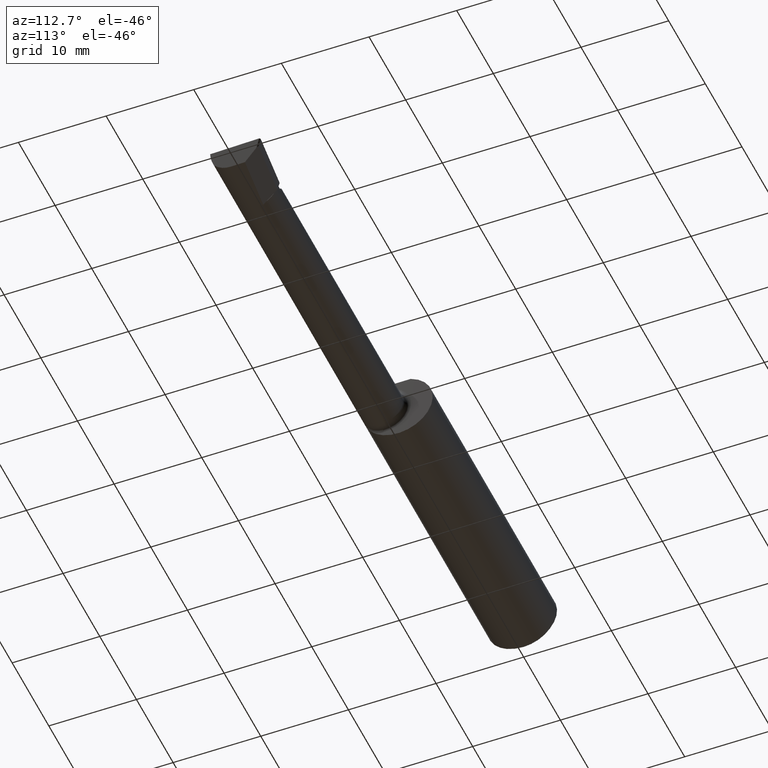
[diagram: clean part render]
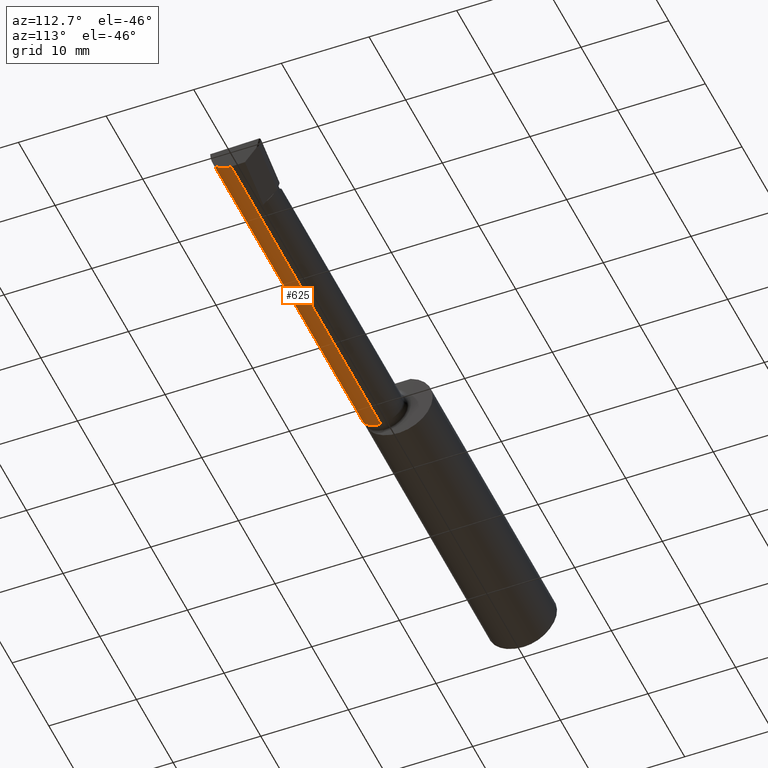
[diagram: same view with one face highlighted and labeled with its STEP entity id]
A machine part, auxiliary view. The second image highlights one B-rep face of the part: STEP entity #625.
In plain terms, the highlighted cylindrical surface (edge-blend (fillet) strip) has radius 2.5375 mm, axis along (-1, -0, -0).
Its self-contained STEP definition (entity closure, byte-faithful):
#4 = CYLINDRICAL_SURFACE ( 'NONE', #440, 0.09989999999999998881 ) ;
#8 = EDGE_CURVE ( 'NONE', #596, #362, #585, .T. ) ;
#13 = VECTOR ( 'NONE', #414, 39.37007874015748143 ) ;
#23 = VERTEX_POINT ( 'NONE', #790 ) ;
#35 = EDGE_CURVE ( 'NONE', #159, #23, #328, .T. ) ;
#47 = EDGE_CURVE ( 'NONE', #296, #159, #174, .T. ) ;
#65 = FACE_OUTER_BOUND ( 'NONE', #738, .T. ) ;
#159 = VERTEX_POINT ( 'NONE', #573 ) ;
#174 = LINE ( 'NONE', #613, #726 ) ;
#188 = CARTESIAN_POINT ( 'NONE',  ( 2.986434241799654554, -0.1419939393939393391, -0.06484544066771595616 ) ) ;
#192 = EDGE_CURVE ( 'NONE', #596, #23, #378, .T. ) ;
#202 = DIRECTION ( 'NONE',  ( 0.000000000000000000, 0.000000000000000000, 1.000000000000000000 ) ) ;
#205 = DIRECTION ( 'NONE',  ( -1.000000000000000000, -0.000000000000000000, -0.000000000000000000 ) ) ;
#257 = ORIENTED_EDGE ( 'NONE', *, *, #325, .F. ) ;
#260 = DIRECTION ( 'NONE',  ( -1.000000000000000000, -0.000000000000000000, -0.000000000000000000 ) ) ;
#273 = CARTESIAN_POINT ( 'NONE',  ( 2.986434241799654554, -0.1419939393939393391, -0.06484544066771595616 ) ) ;
#280 = ORIENTED_EDGE ( 'NONE', *, *, #35, .F. ) ;
#296 = VERTEX_POINT ( 'NONE', #395 ) ;
#302 = DIRECTION ( 'NONE',  ( 0.000000000000000000, 0.000000000000000000, 1.000000000000000000 ) ) ;
#304 = AXIS2_PLACEMENT_3D ( 'NONE', #478, #608, #302 ) ;
#325 = EDGE_CURVE ( 'NONE', #362, #296, #600, .T. ) ;
#328 = CIRCLE ( 'NONE', #304, 0.09989999999999990554 ) ;
#362 = VERTEX_POINT ( 'NONE', #473 ) ;
#378 = LINE ( 'NONE', #570, #545 ) ;
#395 = CARTESIAN_POINT ( 'NONE',  ( 2.729999999999999982, -0.06599999999999998923, -0.09990000000000000269 ) ) ;
#397 = ORIENTED_EDGE ( 'NONE', *, *, #47, .F. ) ;
#414 = DIRECTION ( 'NONE',  ( -1.000000000000000000, 5.691349986800549142E-18, -0.000000000000000000 ) ) ;
#440 = AXIS2_PLACEMENT_3D ( 'NONE', #509, #205, #202 ) ;
#471 = ORIENTED_EDGE ( 'NONE', *, *, #8, .F. ) ;
#473 = CARTESIAN_POINT ( 'NONE',  ( 2.984118579027821738, -0.06599999999999998923, -0.09990000000000000269 ) ) ;
#478 = CARTESIAN_POINT ( 'NONE',  ( 1.375000000000000222, -0.06599999999999998923, 0.000000000000000000 ) ) ;
#509 = CARTESIAN_POINT ( 'NONE',  ( 0.000000000000000000, -0.06599999999999998923, 0.000000000000000000 ) ) ;
#545 = VECTOR ( 'NONE', #260, 39.37007874015748143 ) ;
#546 = CARTESIAN_POINT ( 'NONE',  ( 2.984118579027821738, -0.06599999999999998923, -0.09990000000000000269 ) ) ;
#570 = CARTESIAN_POINT ( 'NONE',  ( 2.052500000000000213, -0.1419939393939393391, -0.06484544066771595616 ) ) ;
#573 = CARTESIAN_POINT ( 'NONE',  ( 1.375000000000000222, -0.06599999999999997535, -0.09989999999999990554 ) ) ;
#585 =( BOUNDED_CURVE ( )  B_SPLINE_CURVE ( 3, ( #188, #685, #676, #546 ),
 .UNSPECIFIED., .F., .T. ) 
 B_SPLINE_CURVE_WITH_KNOTS ( ( 4, 4 ),
 ( 5.628843761710443871, 6.493234751459348253 ),
 .UNSPECIFIED. ) 
 CURVE ( )  GEOMETRIC_REPRESENTATION_ITEM ( )  RATIONAL_B_SPLINE_CURVE ( ( 1.000000000000000000, 0.9386988813357772798, 0.9386988813357772798, 1.000000000000000000 ) ) 
 REPRESENTATION_ITEM ( '' )  );
#596 = VERTEX_POINT ( 'NONE', #273 ) ;
#600 = LINE ( 'NONE', #714, #13 ) ;
#608 = DIRECTION ( 'NONE',  ( -1.000000000000000000, -0.000000000000000000, -0.000000000000000000 ) ) ;
#613 = CARTESIAN_POINT ( 'NONE',  ( 0.000000000000000000, -0.06599999999999998923, -0.09989999999999998881 ) ) ;
#619 = DIRECTION ( 'NONE',  ( -1.000000000000000000, -0.000000000000000000, -0.000000000000000000 ) ) ;
#625 = ADVANCED_FACE ( 'NONE', ( #65 ), #4, .T. ) ;
#676 = CARTESIAN_POINT ( 'NONE',  ( 2.983340380677749870, -0.09571819601686556989, -0.09989999999999998881 ) ) ;
#685 = CARTESIAN_POINT ( 'NONE',  ( 2.984162675884400429, -0.1227037540429563728, -0.08745207517224938554 ) ) ;
#714 = CARTESIAN_POINT ( 'NONE',  ( 3.000000000000000444, -0.06599999999999998923, -0.09990000000000000269 ) ) ;
#726 = VECTOR ( 'NONE', #619, 39.37007874015748143 ) ;
#738 = EDGE_LOOP ( 'NONE', ( #397, #257, #471, #809, #280 ) ) ;
#790 = CARTESIAN_POINT ( 'NONE',  ( 1.375000000000000222, -0.1419939393939393113, -0.06484544066771588677 ) ) ;
#809 = ORIENTED_EDGE ( 'NONE', *, *, #192, .T. ) ;